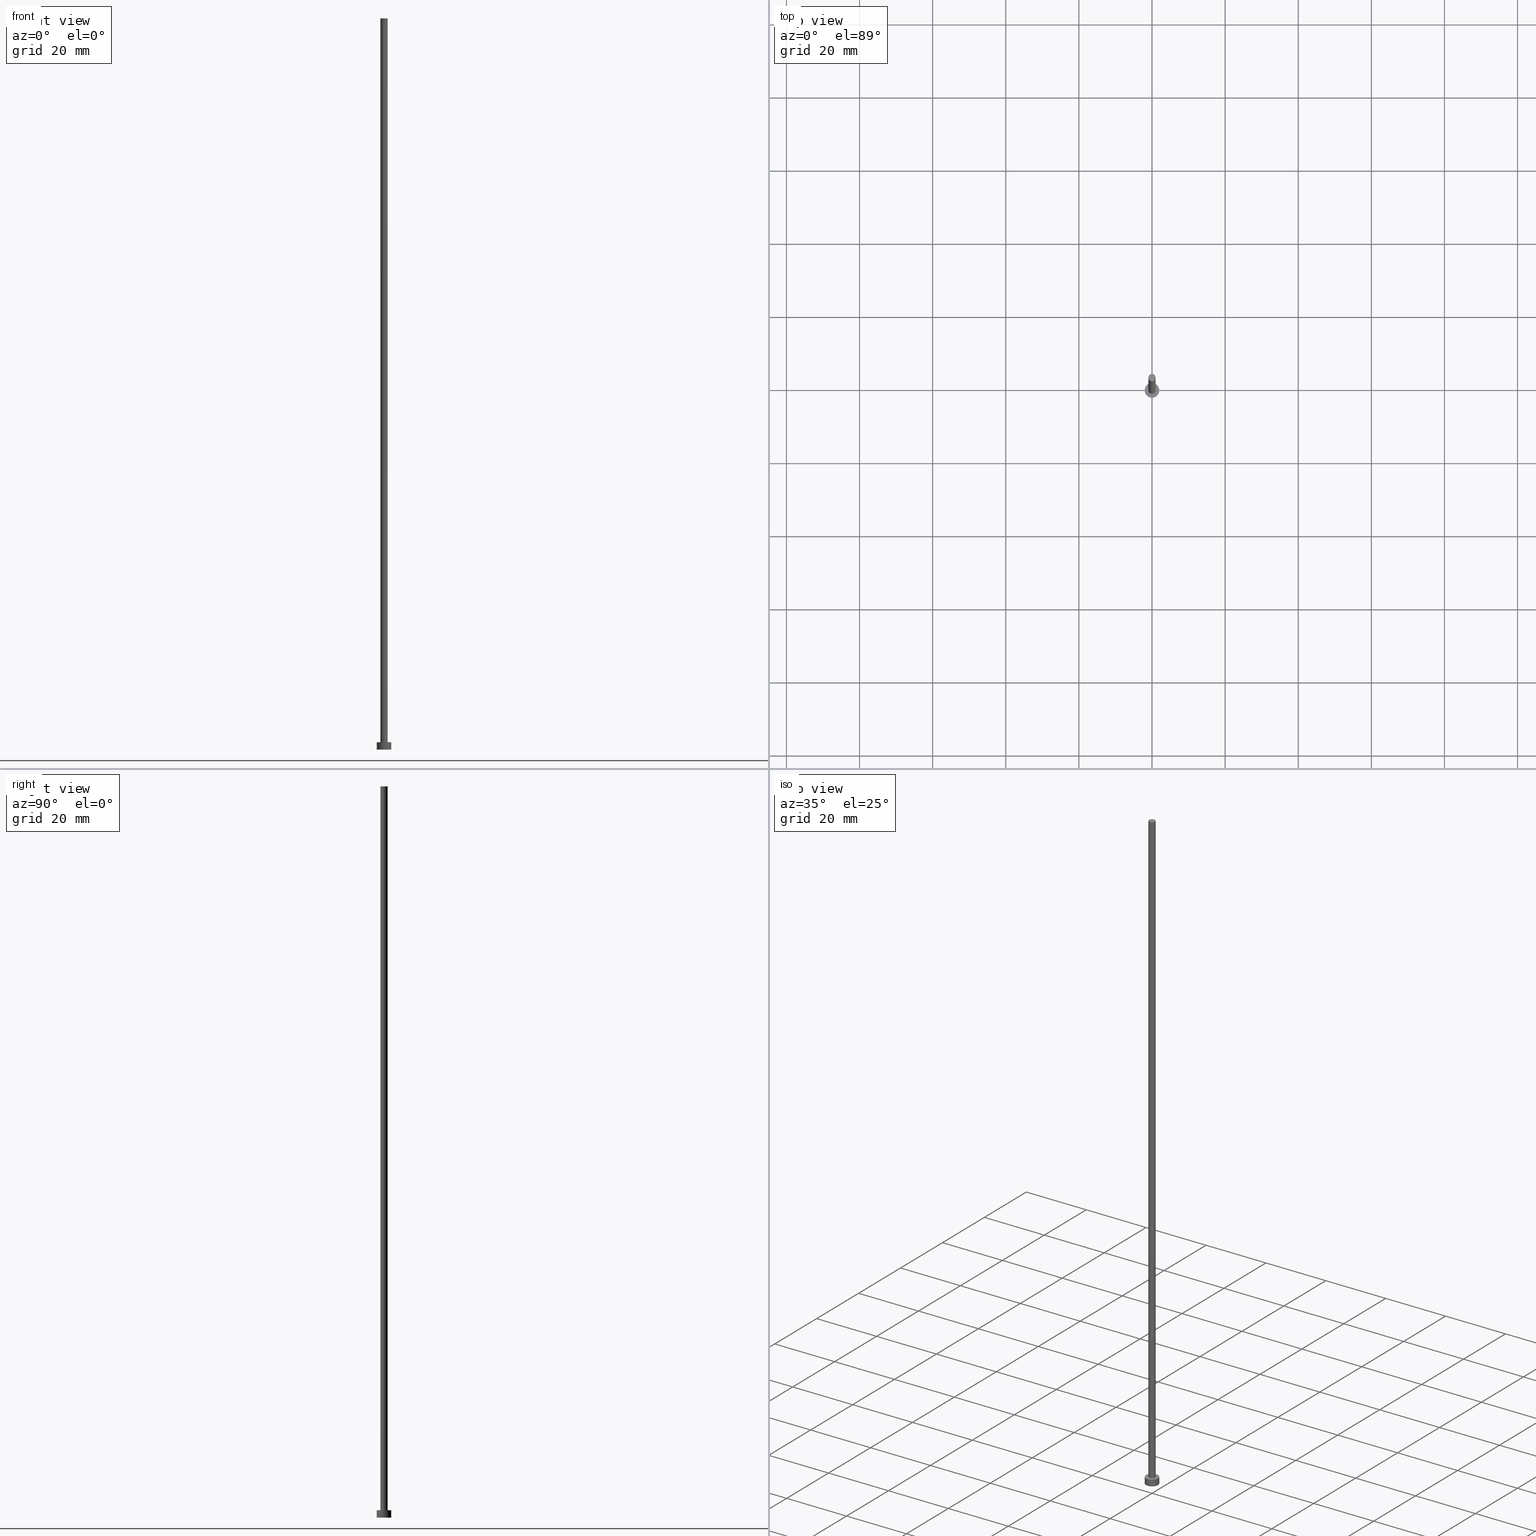
[diagram: canonical four-view strip — front | top / right | iso, engineering-drawing reading convention]
A machine part, canonical four-view strip (front | top / right | iso — engineering-drawing reading convention). The complete STEP part file that produces these views, byte-faithful:
ISO-10303-21;
HEADER;
FILE_DESCRIPTION (( 'STEP AP203' ),
    '1' );
FILE_NAME ('592f.STEP',
    '2023-02-13T14:55:33',
    ( '' ),
    ( '' ),
    'SwSTEP 2.0',
    'SolidWorks 2019',
    '' );
FILE_SCHEMA (( 'CONFIG_CONTROL_DESIGN' ));
ENDSEC;

DATA;
#1 = CLOSED_SHELL ( 'NONE', ( #211, #21, #72, #68, #33, #154, #186 ) ) ;
#2 = CALENDAR_DATE ( 2023, 13, 2 ) ;
#3 = ORIENTED_EDGE ( 'NONE', *, *, #22, .T. ) ;
#4 = PRODUCT ( '592f', '592f', '', ( #224 ) ) ;
#5 = PERSON_AND_ORGANIZATION_ROLE ( 'design_supplier' ) ;
#6 = DIRECTION ( 'NONE',  ( 0.000000000000000000, 0.000000000000000000, 1.000000000000000000 ) ) ;
#7 = FACE_BOUND ( 'NONE', #96, .T. ) ;
#8 = UNCERTAINTY_MEASURE_WITH_UNIT (LENGTH_MEASURE( 1.000000000000000082E-05 ), #19, 'distance_accuracy_value', 'NONE');
#9 = DIRECTION ( 'NONE',  ( 1.000000000000000000, 0.000000000000000000, 0.000000000000000000 ) ) ;
#10 = VECTOR ( 'NONE', #127, 1000.000000000000000 ) ;
#11 = VERTEX_POINT ( 'NONE', #254 ) ;
#12 = DIRECTION ( 'NONE',  ( -0.000000000000000000, -0.000000000000000000, -1.000000000000000000 ) ) ;
#13 = CARTESIAN_POINT ( 'NONE',  ( 1.000000000000000000, 1.224646799147353207E-16, 200.0000000000000000 ) ) ;
#14 = CARTESIAN_POINT ( 'NONE',  ( 0.000000000000000000, 0.000000000000000000, 2.000000000000000000 ) ) ;
#15 = EDGE_LOOP ( 'NONE', ( #45, #43, #44, #55 ) ) ;
#16 = VECTOR ( 'NONE', #212, 1000.000000000000000 ) ;
#17 = ORIENTED_EDGE ( 'NONE', *, *, #240, .F. ) ;
#18 = ORIENTED_EDGE ( 'NONE', *, *, #70, .F. ) ;
#19 =( LENGTH_UNIT ( ) NAMED_UNIT ( * ) SI_UNIT ( .MILLI., .METRE. ) );
#20 = LINE ( 'NONE', #40, #180 ) ;
#21 = ADVANCED_FACE ( 'NONE', ( #80 ), #75, .T. ) ;
#22 = EDGE_CURVE ( 'NONE', #223, #41, #97, .T. ) ;
#23 = COORDINATED_UNIVERSAL_TIME_OFFSET ( 1, 0, .AHEAD. ) ;
#24 = ORIENTED_EDGE ( 'NONE', *, *, #132, .F. ) ;
#25 = DIRECTION ( 'NONE',  ( 0.000000000000000000, 0.000000000000000000, 1.000000000000000000 ) ) ;
#26 = DATE_TIME_ROLE ( 'creation_date' ) ;
#27 = APPROVAL_PERSON_ORGANIZATION ( #193, #157, #137 ) ;
#28 = PERSON_AND_ORGANIZATION_ROLE ( 'design_owner' ) ;
#29 = CARTESIAN_POINT ( 'NONE',  ( 1.000000000000000000, 1.224646799147353207E-16, 200.0000000000000000 ) ) ;
#30 = CC_DESIGN_PERSON_AND_ORGANIZATION_ASSIGNMENT ( #64, #5, ( #83 ) ) ;
#31 = DIRECTION ( 'NONE',  ( 1.000000000000000000, 0.000000000000000000, 0.000000000000000000 ) ) ;
#32 = CARTESIAN_POINT ( 'NONE',  ( 0.000000000000000000, 0.000000000000000000, 200.0000000000000000 ) ) ;
#33 = ADVANCED_FACE ( 'NONE', ( #220 ), #161, .F. ) ;
#34 = CARTESIAN_POINT ( 'NONE',  ( -1.000000000000000000, 0.000000000000000000, 200.0000000000000000 ) ) ;
#35 = AXIS2_PLACEMENT_3D ( 'NONE', #109, #123, #185 ) ;
#36 = LOCAL_TIME ( 15, 55, 33.00000000000000000, #201 ) ;
#37 = DIRECTION ( 'NONE',  ( -1.000000000000000000, 0.000000000000000000, 0.000000000000000000 ) ) ;
#38 = VERTEX_POINT ( 'NONE', #218 ) ;
#39 = EDGE_LOOP ( 'NONE', ( #155, #170, #217, #101 ) ) ;
#40 = CARTESIAN_POINT ( 'NONE',  ( -2.000000000000000000, 0.000000000000000000, 2.000000000000000000 ) ) ;
#41 = VERTEX_POINT ( 'NONE', #29 ) ;
#42 = CARTESIAN_POINT ( 'NONE',  ( 2.000000000000000000, 2.449293598294706414E-16, 2.000000000000000000 ) ) ;
#43 = ORIENTED_EDGE ( 'NONE', *, *, #57, .F. ) ;
#44 = ORIENTED_EDGE ( 'NONE', *, *, #207, .T. ) ;
#45 = ORIENTED_EDGE ( 'NONE', *, *, #234, .F. ) ;
#46 = PERSON_AND_ORGANIZATION ( #105, #140 ) ;
#47 = APPLICATION_PROTOCOL_DEFINITION ( 'international standard', 'config_control_design', 1994, #128 ) ;
#48 = DIRECTION ( 'NONE',  ( 1.000000000000000000, 0.000000000000000000, -0.000000000000000000 ) ) ;
#49 = APPLICATION_PROTOCOL_DEFINITION ( 'international standard', 'config_control_design', 1994, #89 ) ;
#50 = DATE_AND_TIME ( #117, #176 ) ;
#51 = DIRECTION ( 'NONE',  ( -1.000000000000000000, 0.000000000000000000, 0.000000000000000000 ) ) ;
#52 = DESIGN_CONTEXT ( 'detailed design', #128, 'design' ) ;
#53 = LINE ( 'NONE', #34, #10 ) ;
#54 = CIRCLE ( 'NONE', #242, 1.000000000000000000 ) ;
#55 = ORIENTED_EDGE ( 'NONE', *, *, #132, .T. ) ;
#56 = FACE_OUTER_BOUND ( 'NONE', #39, .T. ) ;
#57 = EDGE_CURVE ( 'NONE', #38, #146, #162, .T. ) ;
#58 = ORIENTED_EDGE ( 'NONE', *, *, #207, .F. ) ;
#59 = PERSON_AND_ORGANIZATION ( #105, #140 ) ;
#60 = EDGE_LOOP ( 'NONE', ( #24, #113 ) ) ;
#61 = DATE_AND_TIME ( #156, #252 ) ;
#62 = CIRCLE ( 'NONE', #199, 2.000000000000000000 ) ;
#63 = DATE_AND_TIME ( #2, #107 ) ;
#64 = PERSON_AND_ORGANIZATION ( #105, #140 ) ;
#65 = CC_DESIGN_DATE_AND_TIME_ASSIGNMENT ( #50, #198, ( #130 ) ) ;
#66 = COORDINATED_UNIVERSAL_TIME_OFFSET ( 1, 0, .AHEAD. ) ;
#67 = AXIS2_PLACEMENT_3D ( 'NONE', #183, #12, #249 ) ;
#68 = ADVANCED_FACE ( 'NONE', ( #7, #76 ), #229, .T. ) ;
#69 = CIRCLE ( 'NONE', #216, 2.000000000000000000 ) ;
#70 = EDGE_CURVE ( 'NONE', #136, #230, #233, .T. ) ;
#71 = DIRECTION ( 'NONE',  ( 0.000000000000000000, 0.000000000000000000, 1.000000000000000000 ) ) ;
#72 = ADVANCED_FACE ( 'NONE', ( #178 ), #168, .T. ) ;
#73 = DIRECTION ( 'NONE',  ( 1.000000000000000000, 0.000000000000000000, -0.000000000000000000 ) ) ;
#74 = PRODUCT_RELATED_PRODUCT_CATEGORY ( 'detail', '', ( #4 ) ) ;
#75 = CYLINDRICAL_SURFACE ( 'NONE', #197, 2.000000000000000000 ) ;
#76 = FACE_OUTER_BOUND ( 'NONE', #111, .T. ) ;
#77 = ORIENTED_EDGE ( 'NONE', *, *, #57, .T. ) ;
#78 = DIRECTION ( 'NONE',  ( -1.000000000000000000, 0.000000000000000000, 0.000000000000000000 ) ) ;
#79 = LINE ( 'NONE', #42, #16 ) ;
#80 = FACE_OUTER_BOUND ( 'NONE', #129, .T. ) ;
#81 = PRODUCT_DEFINITION ( 'NEZN�M�', '', #83, #52 ) ;
#82 = DIRECTION ( 'NONE',  ( 0.000000000000000000, 0.000000000000000000, 1.000000000000000000 ) ) ;
#83 = PRODUCT_DEFINITION_FORMATION_WITH_SPECIFIED_SOURCE ( 'LIBOVOLN�', '', #4, .NOT_KNOWN. ) ;
#84 = PERSON_AND_ORGANIZATION_ROLE ( 'creator' ) ;
#85 = DIRECTION ( 'NONE',  ( 1.000000000000000000, 0.000000000000000000, 0.000000000000000000 ) ) ;
#86 = MANIFOLD_SOLID_BREP ( 'P�idat vysunut�m3', #1 ) ;
#87 = AXIS2_PLACEMENT_3D ( 'NONE', #91, #71, #202 ) ;
#88 = DIRECTION ( 'NONE',  ( 1.000000000000000000, 0.000000000000000000, 0.000000000000000000 ) ) ;
#89 = APPLICATION_CONTEXT ( 'configuration controlled 3d designs of mechanical parts and assemblies' ) ;
#90 = CYLINDRICAL_SURFACE ( 'NONE', #189, 1.000000000000000000 ) ;
#91 = CARTESIAN_POINT ( 'NONE',  ( 0.000000000000000000, 0.000000000000000000, 2.000000000000000000 ) ) ;
#92 = AXIS2_PLACEMENT_3D ( 'NONE', #167, #6, #9 ) ;
#93 = CARTESIAN_POINT ( 'NONE',  ( 0.000000000000000000, 0.000000000000000000, 0.000000000000000000 ) ) ;
#94 = EDGE_LOOP ( 'NONE', ( #17, #232, #250, #235 ) ) ;
#95 = EDGE_CURVE ( 'NONE', #41, #223, #54, .T. ) ;
#96 = EDGE_LOOP ( 'NONE', ( #149, #18 ) ) ;
#97 = CIRCLE ( 'NONE', #246, 1.000000000000000000 ) ;
#98 = DIRECTION ( 'NONE',  ( -0.000000000000000000, -0.000000000000000000, -1.000000000000000000 ) ) ;
#99 = EDGE_CURVE ( 'NONE', #11, #173, #205, .T. ) ;
#100 = APPROVAL_PERSON_ORGANIZATION ( #133, #148, #238 ) ;
#101 = ORIENTED_EDGE ( 'NONE', *, *, #194, .F. ) ;
#102 = APPROVAL_STATUS ( 'not_yet_approved' ) ;
#103 = CC_DESIGN_DATE_AND_TIME_ASSIGNMENT ( #177, #26, ( #81 ) ) ;
#104 = PERSON_AND_ORGANIZATION ( #105, #140 ) ;
#105 = PERSON ( 'NEUR�EN�', 'NEUR�EN�', 'NEUR�EN�', ('NEUR�EN�'), ('NEUR�EN�'), ('NEUR�EN�') ) ;
#106 = COORDINATED_UNIVERSAL_TIME_OFFSET ( 1, 0, .AHEAD. ) ;
#107 = LOCAL_TIME ( 15, 55, 33.00000000000000000, #106 ) ;
#108 = CARTESIAN_POINT ( 'NONE',  ( 1.000000000000000000, 1.224646799147353207E-16, 2.000000000000000000 ) ) ;
#109 = CARTESIAN_POINT ( 'NONE',  ( 0.000000000000000000, 0.000000000000000000, 2.000000000000000000 ) ) ;
#110 = ORIENTED_EDGE ( 'NONE', *, *, #209, .F. ) ;
#111 = EDGE_LOOP ( 'NONE', ( #77, #213 ) ) ;
#112 = DIRECTION ( 'NONE',  ( 1.000000000000000000, 0.000000000000000000, 0.000000000000000000 ) ) ;
#113 = ORIENTED_EDGE ( 'NONE', *, *, #99, .F. ) ;
#114 = CALENDAR_DATE ( 2023, 13, 2 ) ;
#115 = AXIS2_PLACEMENT_3D ( 'NONE', #253, #187, #78 ) ;
#116 = EDGE_CURVE ( 'NONE', #230, #136, #124, .T. ) ;
#117 = CALENDAR_DATE ( 2023, 13, 2 ) ;
#118 = COORDINATED_UNIVERSAL_TIME_OFFSET ( 1, 0, .AHEAD. ) ;
#119 = CARTESIAN_POINT ( 'NONE',  ( 0.000000000000000000, 0.000000000000000000, 2.000000000000000000 ) ) ;
#120 = DIRECTION ( 'NONE',  ( 0.000000000000000000, 0.000000000000000000, 1.000000000000000000 ) ) ;
#121 = CC_DESIGN_PERSON_AND_ORGANIZATION_ASSIGNMENT ( #46, #28, ( #4 ) ) ;
#122 = CARTESIAN_POINT ( 'NONE',  ( -2.000000000000000000, 0.000000000000000000, 0.000000000000000000 ) ) ;
#123 = DIRECTION ( 'NONE',  ( 0.000000000000000000, 0.000000000000000000, 1.000000000000000000 ) ) ;
#124 = CIRCLE ( 'NONE', #87, 1.000000000000000000 ) ;
#125 = CC_DESIGN_SECURITY_CLASSIFICATION ( #130, ( #83 ) ) ;
#126 = CARTESIAN_POINT ( 'NONE',  ( -1.000000000000000000, 0.000000000000000000, 200.0000000000000000 ) ) ;
#127 = DIRECTION ( 'NONE',  ( -0.000000000000000000, -0.000000000000000000, -1.000000000000000000 ) ) ;
#128 = APPLICATION_CONTEXT ( 'configuration controlled 3d designs of mechanical parts and assemblies' ) ;
#129 = EDGE_LOOP ( 'NONE', ( #110, #138, #188, #58 ) ) ;
#130 = SECURITY_CLASSIFICATION ( '', '', #195 ) ;
#131 = ORIENTED_EDGE ( 'NONE', *, *, #95, .T. ) ;
#132 = EDGE_CURVE ( 'NONE', #173, #11, #62, .T. ) ;
#133 = PERSON_AND_ORGANIZATION ( #105, #140 ) ;
#134 = DATE_AND_TIME ( #241, #36 ) ;
#135 = SHAPE_DEFINITION_REPRESENTATION ( #222, #204 ) ;
#136 = VERTEX_POINT ( 'NONE', #108 ) ;
#137 = APPROVAL_ROLE ( '' ) ;
#138 = ORIENTED_EDGE ( 'NONE', *, *, #234, .T. ) ;
#139 = APPROVAL_STATUS ( 'not_yet_approved' ) ;
#140 = ORGANIZATION ( 'NEUR�EN�', 'NEUR�EN�', '' ) ;
#141 = CC_DESIGN_PERSON_AND_ORGANIZATION_ASSIGNMENT ( #237, #175, ( #130 ) ) ;
#142 = DIRECTION ( 'NONE',  ( 0.000000000000000000, 0.000000000000000000, 1.000000000000000000 ) ) ;
#143 = CC_DESIGN_PERSON_AND_ORGANIZATION_ASSIGNMENT ( #104, #84, ( #81 ) ) ;
#144 = DIRECTION ( 'NONE',  ( 0.000000000000000000, 0.000000000000000000, 1.000000000000000000 ) ) ;
#145 = CARTESIAN_POINT ( 'NONE',  ( 0.000000000000000000, 0.000000000000000000, 0.000000000000000000 ) ) ;
#146 = VERTEX_POINT ( 'NONE', #227 ) ;
#147 = DIRECTION ( 'NONE',  ( 0.000000000000000000, 0.000000000000000000, 1.000000000000000000 ) ) ;
#148 = APPROVAL ( #102, 'NEUR�EN�' ) ;
#149 = ORIENTED_EDGE ( 'NONE', *, *, #116, .F. ) ;
#150 = DIRECTION ( 'NONE',  ( -0.000000000000000000, -0.000000000000000000, -1.000000000000000000 ) ) ;
#151 = APPROVAL ( #139, 'NEUR�EN�' ) ;
#152 = EDGE_LOOP ( 'NONE', ( #3, #131 ) ) ;
#153 = DIRECTION ( 'NONE',  ( -0.000000000000000000, -0.000000000000000000, -1.000000000000000000 ) ) ;
#154 = ADVANCED_FACE ( 'NONE', ( #181 ), #90, .T. ) ;
#155 = ORIENTED_EDGE ( 'NONE', *, *, #95, .F. ) ;
#156 = CALENDAR_DATE ( 2023, 13, 2 ) ;
#157 = APPROVAL ( #219, 'NEUR�EN�' ) ;
#158 = CARTESIAN_POINT ( 'NONE',  ( 0.000000000000000000, 0.000000000000000000, 0.000000000000000000 ) ) ;
#159 =( GEOMETRIC_REPRESENTATION_CONTEXT ( 3 ) GLOBAL_UNCERTAINTY_ASSIGNED_CONTEXT ( ( #8 ) ) GLOBAL_UNIT_ASSIGNED_CONTEXT ( ( #19, #214, #191 ) ) REPRESENTATION_CONTEXT ( 'NONE', 'WORKASPACE' ) );
#160 = DIRECTION ( 'NONE',  ( 1.000000000000000000, 0.000000000000000000, 0.000000000000000000 ) ) ;
#161 = PLANE ( 'NONE',  #163 ) ;
#162 = CIRCLE ( 'NONE', #92, 2.000000000000000000 ) ;
#163 = AXIS2_PLACEMENT_3D ( 'NONE', #200, #142, #48 ) ;
#164 = CARTESIAN_POINT ( 'NONE',  ( 0.000000000000000000, 0.000000000000000000, 200.0000000000000000 ) ) ;
#165 = CARTESIAN_POINT ( 'NONE',  ( 0.000000000000000000, 0.000000000000000000, 200.0000000000000000 ) ) ;
#166 = CC_DESIGN_APPROVAL ( #157, ( #130 ) ) ;
#167 = CARTESIAN_POINT ( 'NONE',  ( 0.000000000000000000, 0.000000000000000000, 2.000000000000000000 ) ) ;
#168 = CYLINDRICAL_SURFACE ( 'NONE', #67, 2.000000000000000000 ) ;
#169 = CARTESIAN_POINT ( 'NONE',  ( 0.000000000000000000, 0.000000000000000000, 2.000000000000000000 ) ) ;
#170 = ORIENTED_EDGE ( 'NONE', *, *, #240, .T. ) ;
#171 = AXIS2_PLACEMENT_3D ( 'NONE', #119, #120, #226 ) ;
#172 = LOCAL_TIME ( 15, 55, 33.00000000000000000, #66 ) ;
#173 = VERTEX_POINT ( 'NONE', #122 ) ;
#174 = APPROVAL_DATE_TIME ( #61, #157 ) ;
#175 = PERSON_AND_ORGANIZATION_ROLE ( 'classification_officer' ) ;
#176 = LOCAL_TIME ( 15, 55, 33.00000000000000000, #118 ) ;
#177 = DATE_AND_TIME ( #114, #172 ) ;
#178 = FACE_OUTER_BOUND ( 'NONE', #15, .T. ) ;
#179 = CC_DESIGN_APPROVAL ( #151, ( #81 ) ) ;
#180 = VECTOR ( 'NONE', #98, 1000.000000000000000 ) ;
#181 = FACE_OUTER_BOUND ( 'NONE', #94, .T. ) ;
#182 = DIRECTION ( 'NONE',  ( 0.000000000000000000, 0.000000000000000000, 1.000000000000000000 ) ) ;
#183 = CARTESIAN_POINT ( 'NONE',  ( 0.000000000000000000, 0.000000000000000000, 2.000000000000000000 ) ) ;
#184 = VECTOR ( 'NONE', #153, 1000.000000000000000 ) ;
#185 = DIRECTION ( 'NONE',  ( 1.000000000000000000, 0.000000000000000000, -0.000000000000000000 ) ) ;
#186 = ADVANCED_FACE ( 'NONE', ( #247 ), #203, .T. ) ;
#187 = DIRECTION ( 'NONE',  ( -0.000000000000000000, -0.000000000000000000, -1.000000000000000000 ) ) ;
#188 = ORIENTED_EDGE ( 'NONE', *, *, #99, .T. ) ;
#189 = AXIS2_PLACEMENT_3D ( 'NONE', #164, #245, #51 ) ;
#190 = LINE ( 'NONE', #13, #184 ) ;
#191 =( NAMED_UNIT ( * ) SI_UNIT ( $, .STERADIAN. ) SOLID_ANGLE_UNIT ( ) );
#192 = AXIS2_PLACEMENT_3D ( 'NONE', #93, #248, #244 ) ;
#193 = PERSON_AND_ORGANIZATION ( #105, #140 ) ;
#194 = EDGE_CURVE ( 'NONE', #223, #230, #53, .T. ) ;
#195 = SECURITY_CLASSIFICATION_LEVEL ( 'unclassified' ) ;
#196 = APPROVAL_DATE_TIME ( #134, #151 ) ;
#197 = AXIS2_PLACEMENT_3D ( 'NONE', #14, #150, #37 ) ;
#198 = DATE_TIME_ROLE ( 'classification_date' ) ;
#199 = AXIS2_PLACEMENT_3D ( 'NONE', #145, #144, #31 ) ;
#200 = CARTESIAN_POINT ( 'NONE',  ( 0.000000000000000000, 0.000000000000000000, 0.000000000000000000 ) ) ;
#201 = COORDINATED_UNIVERSAL_TIME_OFFSET ( 1, 0, .AHEAD. ) ;
#202 = DIRECTION ( 'NONE',  ( 1.000000000000000000, 0.000000000000000000, 0.000000000000000000 ) ) ;
#203 = PLANE ( 'NONE',  #206 ) ;
#204 = ADVANCED_BREP_SHAPE_REPRESENTATION ( '592f', ( #86, #225 ), #159 ) ;
#205 = CIRCLE ( 'NONE', #192, 2.000000000000000000 ) ;
#206 = AXIS2_PLACEMENT_3D ( 'NONE', #32, #182, #73 ) ;
#207 = EDGE_CURVE ( 'NONE', #38, #173, #20, .T. ) ;
#208 = DIRECTION ( 'NONE',  ( 0.000000000000000000, 0.000000000000000000, 1.000000000000000000 ) ) ;
#209 = EDGE_CURVE ( 'NONE', #146, #38, #69, .T. ) ;
#210 = CARTESIAN_POINT ( 'NONE',  ( -1.000000000000000000, 0.000000000000000000, 2.000000000000000000 ) ) ;
#211 = ADVANCED_FACE ( 'NONE', ( #56 ), #251, .T. ) ;
#212 = DIRECTION ( 'NONE',  ( -0.000000000000000000, -0.000000000000000000, -1.000000000000000000 ) ) ;
#213 = ORIENTED_EDGE ( 'NONE', *, *, #209, .T. ) ;
#214 =( NAMED_UNIT ( * ) PLANE_ANGLE_UNIT ( ) SI_UNIT ( $, .RADIAN. ) );
#215 = PERSON_AND_ORGANIZATION_ROLE ( 'creator' ) ;
#216 = AXIS2_PLACEMENT_3D ( 'NONE', #169, #208, #112 ) ;
#217 = ORIENTED_EDGE ( 'NONE', *, *, #70, .T. ) ;
#218 = CARTESIAN_POINT ( 'NONE',  ( -2.000000000000000000, 0.000000000000000000, 2.000000000000000000 ) ) ;
#219 = APPROVAL_STATUS ( 'not_yet_approved' ) ;
#220 = FACE_OUTER_BOUND ( 'NONE', #60, .T. ) ;
#221 = CC_DESIGN_PERSON_AND_ORGANIZATION_ASSIGNMENT ( #59, #215, ( #83 ) ) ;
#222 = PRODUCT_DEFINITION_SHAPE ( 'NONE', 'NONE',  #81 ) ;
#223 = VERTEX_POINT ( 'NONE', #126 ) ;
#224 = MECHANICAL_CONTEXT ( 'NONE', #89, 'mechanical' ) ;
#225 = AXIS2_PLACEMENT_3D ( 'NONE', #158, #25, #160 ) ;
#226 = DIRECTION ( 'NONE',  ( 1.000000000000000000, 0.000000000000000000, 0.000000000000000000 ) ) ;
#227 = CARTESIAN_POINT ( 'NONE',  ( 2.000000000000000000, 2.449293598294706414E-16, 2.000000000000000000 ) ) ;
#228 = APPROVAL_PERSON_ORGANIZATION ( #255, #151, #236 ) ;
#229 = PLANE ( 'NONE',  #35 ) ;
#230 = VERTEX_POINT ( 'NONE', #210 ) ;
#231 = CARTESIAN_POINT ( 'NONE',  ( 0.000000000000000000, 0.000000000000000000, 200.0000000000000000 ) ) ;
#232 = ORIENTED_EDGE ( 'NONE', *, *, #22, .F. ) ;
#233 = CIRCLE ( 'NONE', #171, 1.000000000000000000 ) ;
#234 = EDGE_CURVE ( 'NONE', #146, #11, #79, .T. ) ;
#235 = ORIENTED_EDGE ( 'NONE', *, *, #116, .T. ) ;
#236 = APPROVAL_ROLE ( '' ) ;
#237 = PERSON_AND_ORGANIZATION ( #105, #140 ) ;
#238 = APPROVAL_ROLE ( '' ) ;
#239 = APPROVAL_DATE_TIME ( #63, #148 ) ;
#240 = EDGE_CURVE ( 'NONE', #41, #136, #190, .T. ) ;
#241 = CALENDAR_DATE ( 2023, 13, 2 ) ;
#242 = AXIS2_PLACEMENT_3D ( 'NONE', #165, #147, #88 ) ;
#243 = CC_DESIGN_APPROVAL ( #148, ( #83 ) ) ;
#244 = DIRECTION ( 'NONE',  ( 1.000000000000000000, 0.000000000000000000, 0.000000000000000000 ) ) ;
#245 = DIRECTION ( 'NONE',  ( -0.000000000000000000, -0.000000000000000000, -1.000000000000000000 ) ) ;
#246 = AXIS2_PLACEMENT_3D ( 'NONE', #231, #82, #85 ) ;
#247 = FACE_OUTER_BOUND ( 'NONE', #152, .T. ) ;
#248 = DIRECTION ( 'NONE',  ( 0.000000000000000000, 0.000000000000000000, 1.000000000000000000 ) ) ;
#249 = DIRECTION ( 'NONE',  ( -1.000000000000000000, 0.000000000000000000, 0.000000000000000000 ) ) ;
#250 = ORIENTED_EDGE ( 'NONE', *, *, #194, .T. ) ;
#251 = CYLINDRICAL_SURFACE ( 'NONE', #115, 1.000000000000000000 ) ;
#252 = LOCAL_TIME ( 15, 55, 33.00000000000000000, #23 ) ;
#253 = CARTESIAN_POINT ( 'NONE',  ( 0.000000000000000000, 0.000000000000000000, 200.0000000000000000 ) ) ;
#254 = CARTESIAN_POINT ( 'NONE',  ( 2.000000000000000000, 2.449293598294706414E-16, 0.000000000000000000 ) ) ;
#255 = PERSON_AND_ORGANIZATION ( #105, #140 ) ;
ENDSEC;
END-ISO-10303-21;
